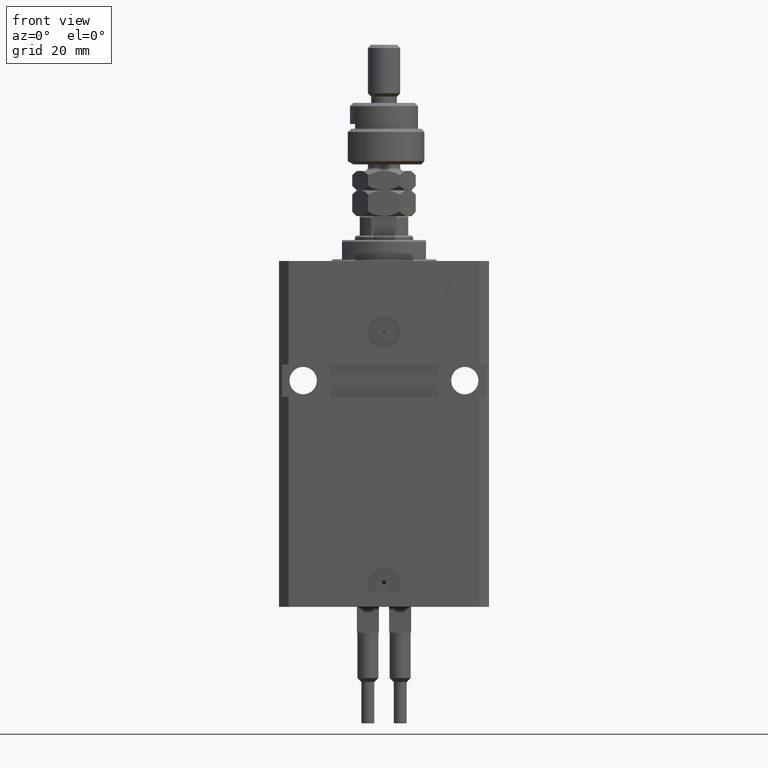
[diagram: clean part render]
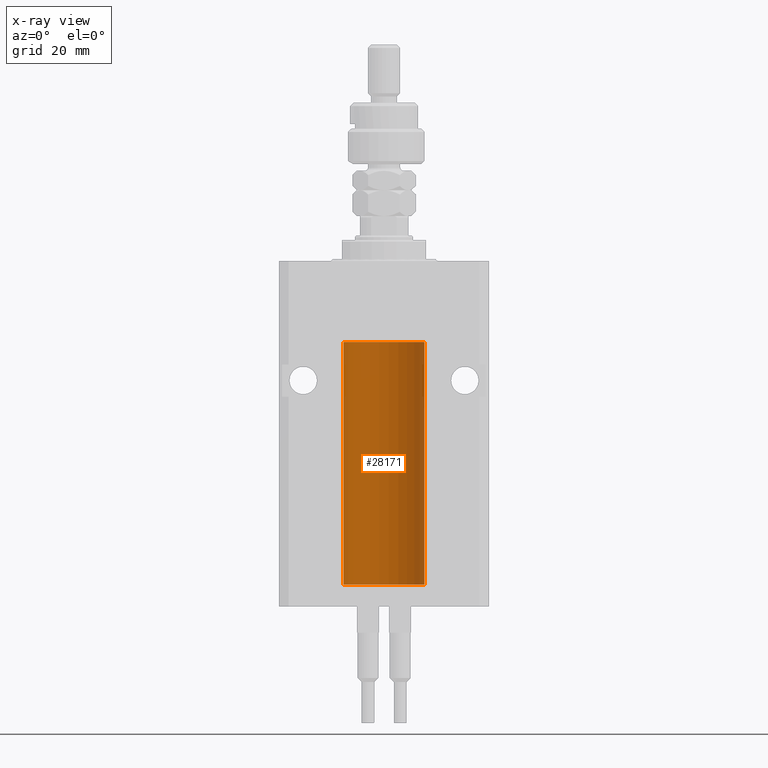
[diagram: x-ray — body ghosted, one internal face saturated and labeled with its STEP entity id]
A machine part, front view, then the same camera in x-ray: the body is ghosted and one INTERNAL B-rep face — a face not visible from any outside direction — is saturated and labeled: STEP entity #28171.
In plain terms, the highlighted cylindrical surface (partial cylindrical patch) has radius 12.5 mm, axis along (0, 0, 1).
Its self-contained STEP definition (entity closure, byte-faithful):
#1500 = CIRCLE ( 'NONE', #35980, 12.50000000000000000 ) ;
#1670 = EDGE_CURVE ( 'NONE', #25634, #4089, #48778, .T. ) ;
#2370 = CARTESIAN_POINT ( 'NONE',  ( 12.50000000000000000, 0.000000000000000000, -100.0999999999999943 ) ) ;
#3362 = CARTESIAN_POINT ( 'NONE',  ( 12.49625698805481022, 0.3151108292486944906, -95.54593695688171806 ) ) ;
#4089 = VERTEX_POINT ( 'NONE', #28006 ) ;
#6217 = CARTESIAN_POINT ( 'NONE',  ( 12.50000000000000000, 0.000000000000000000, -25.10000000000000142 ) ) ;
#6541 = DIRECTION ( 'NONE',  ( 1.000000000000000000, 0.000000000000000000, 0.000000000000000000 ) ) ;
#6968 = ORIENTED_EDGE ( 'NONE', *, *, #41058, .F. ) ;
#7064 = CARTESIAN_POINT ( 'NONE',  ( 12.48436522214888100, 0.6249999999996834754, -94.91847339462351840 ) ) ;
#8714 = DIRECTION ( 'NONE',  ( 0.000000000000000000, 0.000000000000000000, 1.000000000000000000 ) ) ;
#9290 = VERTEX_POINT ( 'NONE', #6217 ) ;
#10510 = VECTOR ( 'NONE', #23936, 1000.000000000000000 ) ;
#11041 = VERTEX_POINT ( 'NONE', #40504 ) ;
#11197 = CARTESIAN_POINT ( 'NONE',  ( 12.50000000000017941, 3.868073689162038701E-13, -94.37499999999640465 ) ) ;
#13927 = CARTESIAN_POINT ( 'NONE',  ( 12.48809900631782099, 0.5573988467445673001, -95.32640147935475738 ) ) ;
#14128 = VERTEX_POINT ( 'NONE', #40101 ) ;
#17028 = ORIENTED_EDGE ( 'NONE', *, *, #28318, .T. ) ;
#17539 = ORIENTED_EDGE ( 'NONE', *, *, #21772, .T. ) ;
#20407 = ORIENTED_EDGE ( 'NONE', *, *, #1670, .T. ) ;
#21772 = EDGE_CURVE ( 'NONE', #4089, #9290, #47070, .T. ) ;
#22760 = CARTESIAN_POINT ( 'NONE',  ( 12.49012055744648997, 0.5002956126656082914, -94.61641710202405875 ) ) ;
#22912 = CARTESIAN_POINT ( 'NONE',  ( 12.49999999999999822, 0.08262306818362624705, -95.62499999999998579 ) ) ;
#23107 = EDGE_CURVE ( 'NONE', #9290, #11041, #1500, .T. ) ;
#23679 = CARTESIAN_POINT ( 'NONE',  ( 12.50000000000000000, 0.000000000000000000, -100.0999999999999943 ) ) ;
#23806 = AXIS2_PLACEMENT_3D ( 'NONE', #44954, #8714, #48056 ) ;
#23936 = DIRECTION ( 'NONE',  ( -0.000000000000000000, -0.000000000000000000, 1.000000000000000000 ) ) ;
#24391 = CARTESIAN_POINT ( 'NONE',  ( 12.48436522214846711, 0.6250000000078848039, -94.99999999999923261 ) ) ;
#24504 = EDGE_LOOP ( 'NONE', ( #6968, #30650, #27106, #17028, #20407, #17539, #47024 ) ) ;
#25634 = VERTEX_POINT ( 'NONE', #24391 ) ;
#26240 = EDGE_CURVE ( 'NONE', #46003, #47451, #45454, .T. ) ;
#26507 = FACE_OUTER_BOUND ( 'NONE', #24504, .T. ) ;
#26869 = CARTESIAN_POINT ( 'NONE',  ( 12.48520578595314845, 0.6087855079133740466, -94.83656717509346379 ) ) ;
#27016 = AXIS2_PLACEMENT_3D ( 'NONE', #41414, #49892, #46047 ) ;
#27106 = ORIENTED_EDGE ( 'NONE', *, *, #26240, .T. ) ;
#28006 = CARTESIAN_POINT ( 'NONE',  ( 12.50000000000017941, 3.868073689162038701E-13, -94.37499999999640465 ) ) ;
#28171 = ADVANCED_FACE ( 'NONE', ( #26507 ), #49632, .F. ) ;
#28318 = EDGE_CURVE ( 'NONE', #47451, #25634, #35529, .T. ) ;
#28516 = EDGE_CURVE ( 'NONE', #46003, #14128, #34466, .T. ) ;
#29612 = CARTESIAN_POINT ( 'NONE',  ( 12.48436522214885969, 0.6250000000001505462, -95.16312747540308692 ) ) ;
#30373 = CARTESIAN_POINT ( 'NONE',  ( 12.50000000000000000, -1.836039810331332019E-15, -95.62500000000000000 ) ) ;
#30650 = ORIENTED_EDGE ( 'NONE', *, *, #28516, .F. ) ;
#31832 = LINE ( 'NONE', #43133, #34962 ) ;
#31950 = CARTESIAN_POINT ( 'NONE',  ( 12.49999999999999822, 0.1631389616600901760, -94.37500000000024158 ) ) ;
#32085 = DIRECTION ( 'NONE',  ( -0.000000000000000000, -0.000000000000000000, 1.000000000000000000 ) ) ;
#33541 = CARTESIAN_POINT ( 'NONE',  ( 0.000000000000000000, 0.000000000000000000, -25.10000000000000142 ) ) ;
#34291 = DIRECTION ( 'NONE',  ( 0.000000000000000000, 0.000000000000000000, 1.000000000000000000 ) ) ;
#34466 = CIRCLE ( 'NONE', #23806, 12.50000000000000000 ) ;
#34962 = VECTOR ( 'NONE', #32085, 1000.000000000000000 ) ;
#35529 = B_SPLINE_CURVE_WITH_KNOTS ( 'NONE', 3,
 ( #30373, #22912, #38596, #3362, #49139, #13927, #29612, #37833 ),
 .UNSPECIFIED., .F., .F.,
 ( 4, 2, 2, 4 ),
 ( 1.784246692340212412E-18, 0.0002443481056285665750, 0.0004886962112571313068, 0.0009773924225142606621 ),
 .UNSPECIFIED. ) ;
#35980 = AXIS2_PLACEMENT_3D ( 'NONE', #33541, #34291, #6541 ) ;
#37833 = CARTESIAN_POINT ( 'NONE',  ( 12.48436522214846711, 0.6250000000078848039, -94.99999999999923261 ) ) ;
#38596 = CARTESIAN_POINT ( 'NONE',  ( 12.49915742890631876, 0.1636982395582385896, -95.60872397847028026 ) ) ;
#40101 = CARTESIAN_POINT ( 'NONE',  ( -12.50000000000000000, 1.530808498934191521E-15, -100.0999999999999943 ) ) ;
#40504 = CARTESIAN_POINT ( 'NONE',  ( -12.50000000000000000, 1.530808498934191521E-15, -25.10000000000000142 ) ) ;
#41058 = EDGE_CURVE ( 'NONE', #14128, #11041, #31832, .T. ) ;
#41345 = DIRECTION ( 'NONE',  ( -0.000000000000000000, -0.000000000000000000, 1.000000000000000000 ) ) ;
#41414 = CARTESIAN_POINT ( 'NONE',  ( 0.000000000000000000, 0.000000000000000000, -100.0999999999999943 ) ) ;
#43133 = CARTESIAN_POINT ( 'NONE',  ( -12.50000000000000000, 1.530808498934191521E-15, -100.0999999999999943 ) ) ;
#44667 = CARTESIAN_POINT ( 'NONE',  ( 12.50000000000000000, -1.836039810331332019E-15, -95.62500000000000000 ) ) ;
#44940 = CARTESIAN_POINT ( 'NONE',  ( 12.50000000000000000, 0.000000000000000000, -100.0999999999999943 ) ) ;
#44954 = CARTESIAN_POINT ( 'NONE',  ( 0.000000000000000000, 0.000000000000000000, -100.0999999999999943 ) ) ;
#45454 = LINE ( 'NONE', #44940, #50867 ) ;
#46003 = VERTEX_POINT ( 'NONE', #2370 ) ;
#46047 = DIRECTION ( 'NONE',  ( 1.000000000000000000, 0.000000000000000000, 0.000000000000000000 ) ) ;
#46670 = CARTESIAN_POINT ( 'NONE',  ( 12.48810305280568222, 0.5461368461738485003, -94.68525466142676805 ) ) ;
#47024 = ORIENTED_EDGE ( 'NONE', *, *, #23107, .T. ) ;
#47070 = LINE ( 'NONE', #23679, #10510 ) ;
#47451 = VERTEX_POINT ( 'NONE', #44667 ) ;
#48056 = DIRECTION ( 'NONE',  ( 1.000000000000000000, 0.000000000000000000, 0.000000000000000000 ) ) ;
#48778 = B_SPLINE_CURVE_WITH_KNOTS ( 'NONE', 3,
 ( #49745, #7064, #26869, #46670, #22760, #50507, #31950, #11197 ),
 .UNSPECIFIED., .F., .F.,
 ( 4, 2, 2, 4 ),
 ( 0.0009773924225142606621, 0.001221629287363811033, 0.001465866152213361404, 0.001954339881912461711 ),
 .UNSPECIFIED. ) ;
#49139 = CARTESIAN_POINT ( 'NONE',  ( 12.49421963472024721, 0.3844519291903572555, -95.49947303647047647 ) ) ;
#49632 = CYLINDRICAL_SURFACE ( 'NONE', #27016, 12.50000000000000000 ) ;
#49745 = CARTESIAN_POINT ( 'NONE',  ( 12.48436522214846711, 0.6250000000078848039, -94.99999999999923261 ) ) ;
#49892 = DIRECTION ( 'NONE',  ( -0.000000000000000000, -0.000000000000000000, 1.000000000000000000 ) ) ;
#50507 = CARTESIAN_POINT ( 'NONE',  ( 12.49631206032076136, 0.3252904079142934779, -94.44139700214928723 ) ) ;
#50867 = VECTOR ( 'NONE', #41345, 1000.000000000000000 ) ;